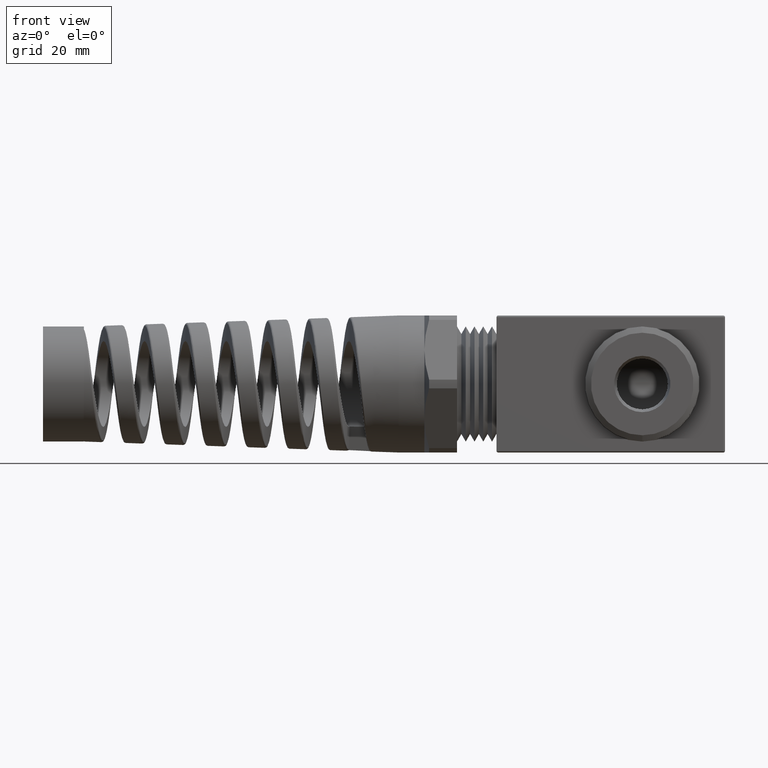
[diagram: clean part render]
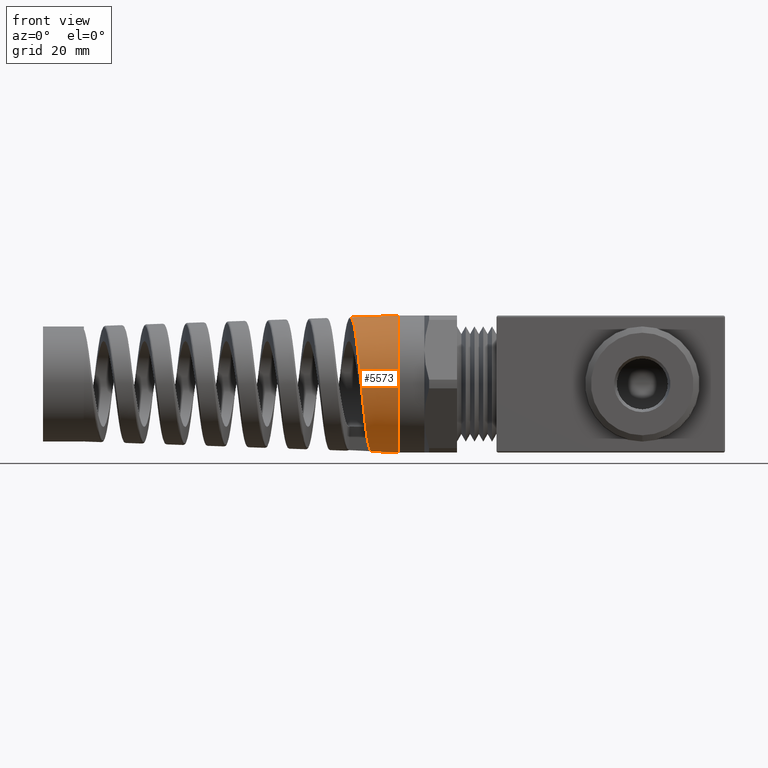
[diagram: same view with one face highlighted and labeled with its STEP entity id]
A machine part, front view. The second image highlights one B-rep face of the part: STEP entity #5573.
In plain terms, the highlighted conical surface has half-angle 2 deg.
Its self-contained STEP definition (entity closure, byte-faithful):
#2995 = DIRECTION ( 'NONE',  ( 0.0000000000000000000, 0.0000000000000000000, 1.000000000000000000 ) ) ;
#2996 = DIRECTION ( 'NONE',  ( -1.000000000000000000, 0.0000000000000000000, 0.0000000000000000000 ) ) ;
#2997 = CARTESIAN_POINT ( 'NONE',  ( -0.6720000000000001500, 0.0000000000000000000, 0.0000000000000000000 ) ) ;
#2998 = AXIS2_PLACEMENT_3D ( 'NONE', #2997, #2996, #2995 ) ;
#2999 = CIRCLE ( 'NONE', #2998, 0.4699999999999998600 ) ;
#5470 = EDGE_CURVE ( 'NONE', #7325, #7220, #9543, .T. ) ;
#5472 = ORIENTED_EDGE ( 'NONE', *, *, #7317, .F. ) ;
#5573 = ADVANCED_FACE ( 'NONE', ( #10526 ), #10524, .T. ) ;
#5574 = EDGE_LOOP ( 'NONE', ( #5472, #5682, #5677, #5726 ) ) ;
#5677 = ORIENTED_EDGE ( 'NONE', *, *, #7315, .T. ) ;
#5682 = ORIENTED_EDGE ( 'NONE', *, *, #5470, .T. ) ;
#5726 = ORIENTED_EDGE ( 'NONE', *, *, #7764, .T. ) ;
#5994 = CARTESIAN_POINT ( 'NONE',  ( -0.8588972040268356700, 4.102646393876852900E-013, -0.4634734058195278900 ) ) ;
#6024 = CARTESIAN_POINT ( 'NONE',  ( -0.6720000000000001500, 0.0000000000000000000, 0.4699999999999998600 ) ) ;
#6291 = CARTESIAN_POINT ( 'NONE',  ( -0.6720000000000001500, 5.755839955992558400E-017, -0.4699999999999998600 ) ) ;
#7210 = VERTEX_POINT ( 'NONE', #6024 ) ;
#7220 = VERTEX_POINT ( 'NONE', #5994 ) ;
#7254 = VERTEX_POINT ( 'NONE', #6291 ) ;
#7315 = EDGE_CURVE ( 'NONE', #7220, #7254, #8564, .T. ) ;
#7317 = EDGE_CURVE ( 'NONE', #7325, #7210, #8560, .T. ) ;
#7325 = VERTEX_POINT ( 'NONE', #8547 ) ;
#7764 = EDGE_CURVE ( 'NONE', #7254, #7210, #2999, .T. ) ;
#8547 = CARTESIAN_POINT ( 'NONE',  ( -0.9992799312884791400, -3.265443029500814700E-015, 0.4585711329602021300 ) ) ;
#8557 = DIRECTION ( 'NONE',  ( 0.9993908270190959800, 4.273955692856292900E-018, 0.03489949670249403700 ) ) ;
#8558 = VECTOR ( 'NONE', #8557, 39.37007874015748100 ) ;
#8559 = CARTESIAN_POINT ( 'NONE',  ( -0.6720000000000001500, 5.755839955992558400E-017, 0.4699999999999998600 ) ) ;
#8560 = LINE ( 'NONE', #8559, #8558 ) ;
#8561 = DIRECTION ( 'NONE',  ( 0.9993908270190959800, 0.0000000000000000000, -0.03489949670249403700 ) ) ;
#8562 = VECTOR ( 'NONE', #8561, 39.37007874015748100 ) ;
#8563 = CARTESIAN_POINT ( 'NONE',  ( -0.6720000000000001500, 0.0000000000000000000, -0.4699999999999998600 ) ) ;
#8564 = LINE ( 'NONE', #8563, #8562 ) ;
#9071 = CARTESIAN_POINT ( 'NONE',  ( -0.9186776771527137600, -0.4491620325553626300, -0.1065672502412648900 ) ) ;
#9072 = CARTESIAN_POINT ( 'NONE',  ( -0.9230462404499780700, -0.4579930949031185700, -0.06231674697325381700 ) ) ;
#9310 = CARTESIAN_POINT ( 'NONE',  ( -0.9259430741318247500, -0.4609909789514094500, -0.03240413047861639300 ) ) ;
#9311 = CARTESIAN_POINT ( 'NONE',  ( -0.9303525330006950900, -0.4610416973728095300, 0.01309051625727924300 ) ) ;
#9312 = CARTESIAN_POINT ( 'NONE',  ( -0.9318312532725188100, -0.4603018919408482500, 0.02834026945173038000 ) ) ;
#9313 = CARTESIAN_POINT ( 'NONE',  ( -0.9347594325065725600, -0.4573602706469071500, 0.05838092565791055300 ) ) ;
#9314 = CARTESIAN_POINT ( 'NONE',  ( -0.9362170315267305300, -0.4551605675113664100, 0.07325610196458826100 ) ) ;
#9315 = CARTESIAN_POINT ( 'NONE',  ( -0.9391318585190416800, -0.4493245874729299700, 0.1027191401393112700 ) ) ;
#9316 = CARTESIAN_POINT ( 'NONE',  ( -0.9405885624178885700, -0.4456883120706712800, 0.1173070544078594900 ) ) ;
#9317 = CARTESIAN_POINT ( 'NONE',  ( -0.9435159556105509000, -0.4369591473951369700, 0.1461901327408685100 ) ) ;
#9318 = CARTESIAN_POINT ( 'NONE',  ( -0.9449943794223293300, -0.4318339077028167700, 0.1605596122854511000 ) ) ;
#9319 = CARTESIAN_POINT ( 'NONE',  ( -0.9494106719498537400, -0.4144315396101881900, 0.2026204671787269200 ) ) ;
#9320 = CARTESIAN_POINT ( 'NONE',  ( -0.9523135032297145300, -0.4002471674797865600, 0.2291313687027168900 ) ) ;
#9321 = CARTESIAN_POINT ( 'NONE',  ( -0.9566937346201286300, -0.3751999647402276500, 0.2666547443849716100 ) ) ;
#9322 = CARTESIAN_POINT ( 'NONE',  ( -0.9581580744981397200, -0.3662179759798281400, 0.2787860528725379400 ) ) ;
#9323 = CARTESIAN_POINT ( 'NONE',  ( -0.9611100977815443300, -0.3469501558950741100, 0.3022714470730166200 ) ) ;
#9324 = CARTESIAN_POINT ( 'NONE',  ( -0.9625888680086468500, -0.3367172848609184500, 0.3135490550044449700 ) ) ;
#9325 = CARTESIAN_POINT ( 'NONE',  ( -0.9669874241341476200, -0.3047174453269108600, 0.3455133402130572400 ) ) ;
#9326 = CARTESIAN_POINT ( 'NONE',  ( -0.9698940655985236500, -0.2814910998674659000, 0.3645613819563166000 ) ) ;
#9327 = CARTESIAN_POINT ( 'NONE',  ( -0.9742999904174181000, -0.2438006391666842400, 0.3897148598104701000 ) ) ;
#9328 = CARTESIAN_POINT ( 'NONE',  ( -0.9757844700748458100, -0.2306825485039804000, 0.3975621762483724200 ) ) ;
#9329 = CARTESIAN_POINT ( 'NONE',  ( -0.9787303719243352100, -0.2039424076862732200, 0.4118046975988115000 ) ) ;
#9330 = CARTESIAN_POINT ( 'NONE',  ( -0.9801938836292406500, -0.1903076634179982100, 0.4182200137938557000 ) ) ;
#9331 = CARTESIAN_POINT ( 'NONE',  ( -0.9845786171086877700, -0.1486301267322499600, 0.4353973026818995800 ) ) ;
#9332 = CARTESIAN_POINT ( 'NONE',  ( -0.9874938651127012100, -0.1198215384085585500, 0.4441107640448069300 ) ) ;
#9333 = CARTESIAN_POINT ( 'NONE',  ( -0.9934250070602140800, -0.06008701306463933700, 0.4558410211147244100 ) ) ;
#9334 = CARTESIAN_POINT ( 'NONE',  ( -0.9963524860300827500, -0.03004276698935632100, 0.4586733616012698700 ) ) ;
#9335 = CARTESIAN_POINT ( 'NONE',  ( -0.9992799312884791400, -3.265443029500814700E-015, 0.4585711329602021300 ) ) ;
#9543 = B_SPLINE_CURVE_WITH_KNOTS ( 'NONE', 3,
 ( #9335, #9334, #9333, #9332, #9331, #9330, #9329, #9328, #9327, #9326, #9325, #9324, #9323, #9322, #9321, #9320, #9319, #9318, #9317, #9316, #9315, #9314, #9313, #9312, #9311, #9310, #9072, #9071, #9672, #9657, #9599, #9649, #9643, #9661, #9644, #9662, #9663, #9596, #9595, #9665, #9664, #9658, #9598, #9597, #9627, #9626, #9625, #9600 ),
 .UNSPECIFIED., .F., .F.,
 ( 4, 2, 2, 2, 2, 2, 2, 2, 2, 2, 2, 2, 2, 2, 2, 2, 2, 2, 2, 2, 2, 2, 2, 4 ),
 ( 0.4503931566352624100, 0.4527246279926804800, 0.4550560993500985500, 0.4562218350288075900, 0.4573875707075166200, 0.4597190420649346900, 0.4608847777436437800, 0.4620505134223528200, 0.4643819847797708800, 0.4655477204584799200, 0.4667134561371889500, 0.4678791918158979900, 0.4690449274946070200, 0.4713763988520250900, 0.4725421345307341300, 0.4737078702094431600, 0.4760393415668612300, 0.4772050772455702600, 0.4783708129242793000, 0.4807022842816973100, 0.4830337556391153800, 0.4841994913178244200, 0.4853652269965334500, 0.4876966983539515200 ),
 .UNSPECIFIED. ) ;
#9595 = CARTESIAN_POINT ( 'NONE',  ( -0.8880372590755415400, -0.2812277211886845500, -0.3683782624615385400 ) ) ;
#9596 = CARTESIAN_POINT ( 'NONE',  ( -0.8909305308965057600, -0.3044653151871710200, -0.3492505009810763000 ) ) ;
#9597 = CARTESIAN_POINT ( 'NONE',  ( -0.8705313826977652000, -0.1193194174602810600, -0.4476859136193465600 ) ) ;
#9598 = CARTESIAN_POINT ( 'NONE',  ( -0.8734499737101579800, -0.1482413643191202400, -0.4388506782944740500 ) ) ;
#9599 = CARTESIAN_POINT ( 'NONE',  ( -0.9128042764236586900, -0.4315054968398681600, -0.1646098036392021600 ) ) ;
#9600 = CARTESIAN_POINT ( 'NONE',  ( -0.8588972040268356700, 4.102646393876852900E-013, -0.4634734058195278900 ) ) ;
#9625 = CARTESIAN_POINT ( 'NONE',  ( -0.8617987469038321800, -0.03009965743652376700, -0.4633720817095767200 ) ) ;
#9626 = CARTESIAN_POINT ( 'NONE',  ( -0.8646803248900890600, -0.05998777847433553500, -0.4603667565891631000 ) ) ;
#9627 = CARTESIAN_POINT ( 'NONE',  ( -0.8690576052187346500, -0.1044891216337340000, -0.4514308019879830800 ) ) ;
#9643 = CARTESIAN_POINT ( 'NONE',  ( -0.9055306973715054900, -0.3999895416192139600, -0.2328561679040792900 ) ) ;
#9644 = CARTESIAN_POINT ( 'NONE',  ( -0.8996685547609122300, -0.3656977495604903400, -0.2828151687288090700 ) ) ;
#9649 = CARTESIAN_POINT ( 'NONE',  ( -0.9084268219673596900, -0.4141590301200814800, -0.2063695938812158700 ) ) ;
#9657 = CARTESIAN_POINT ( 'NONE',  ( -0.9142753662861314900, -0.4366489310137081600, -0.1502910189763639000 ) ) ;
#9658 = CARTESIAN_POINT ( 'NONE',  ( -0.8749016282122996600, -0.1624039260093871100, -0.4337515790160874100 ) ) ;
#9661 = CARTESIAN_POINT ( 'NONE',  ( -0.9011453583192262600, -0.3748067541962494800, -0.2705371217568806600 ) ) ;
#9662 = CARTESIAN_POINT ( 'NONE',  ( -0.8967401303769634300, -0.3464702916204348600, -0.3062223247721512200 ) ) ;
#9663 = CARTESIAN_POINT ( 'NONE',  ( -0.8952858305814300800, -0.3363439572375974100, -0.3173796486583737600 ) ) ;
#9664 = CARTESIAN_POINT ( 'NONE',  ( -0.8792541808889715600, -0.2040119168354651000, -0.4164501821028681100 ) ) ;
#9665 = CARTESIAN_POINT ( 'NONE',  ( -0.8821574271550985900, -0.2306402772387564100, -0.4022270386041689700 ) ) ;
#9672 = CARTESIAN_POINT ( 'NONE',  ( -0.9172176745257517600, -0.4454908553844577600, -0.1212136272864886300 ) ) ;
#10521 = DIRECTION ( 'NONE',  ( 0.0000000000000000000, 0.0000000000000000000, -1.000000000000000000 ) ) ;
#10522 = DIRECTION ( 'NONE',  ( 1.000000000000000000, 0.0000000000000000000, 0.0000000000000000000 ) ) ;
#10523 = AXIS2_PLACEMENT_3D ( 'NONE', #10525, #10522, #10521 ) ;
#10524 = CONICAL_SURFACE ( 'NONE', #10523, 0.4699999999999998600, 0.03490658503987965200 ) ;
#10525 = CARTESIAN_POINT ( 'NONE',  ( -0.6720000000000001500, 0.0000000000000000000, 0.0000000000000000000 ) ) ;
#10526 = FACE_OUTER_BOUND ( 'NONE', #5574, .T. ) ;